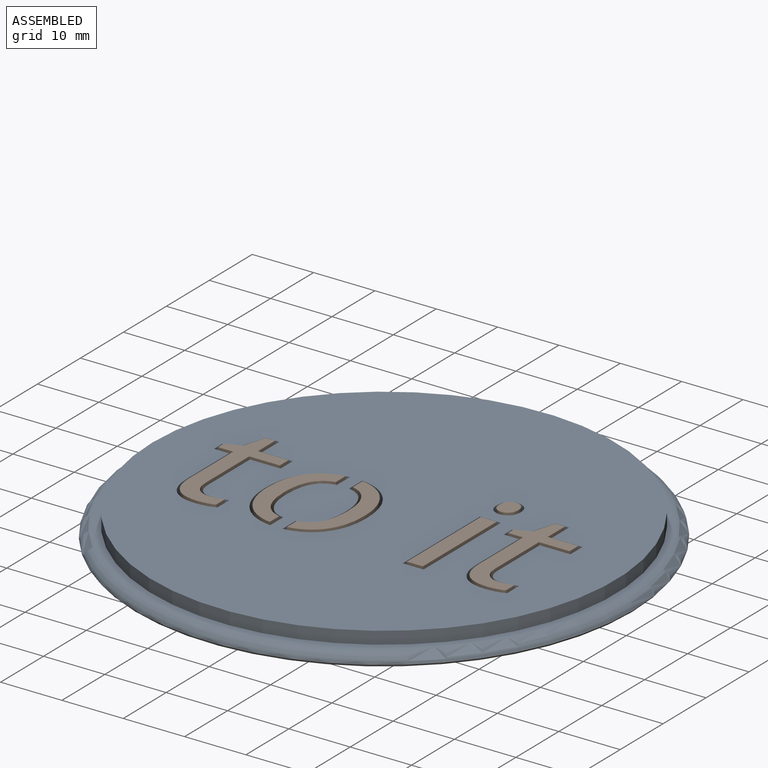
[diagram: assembled view]
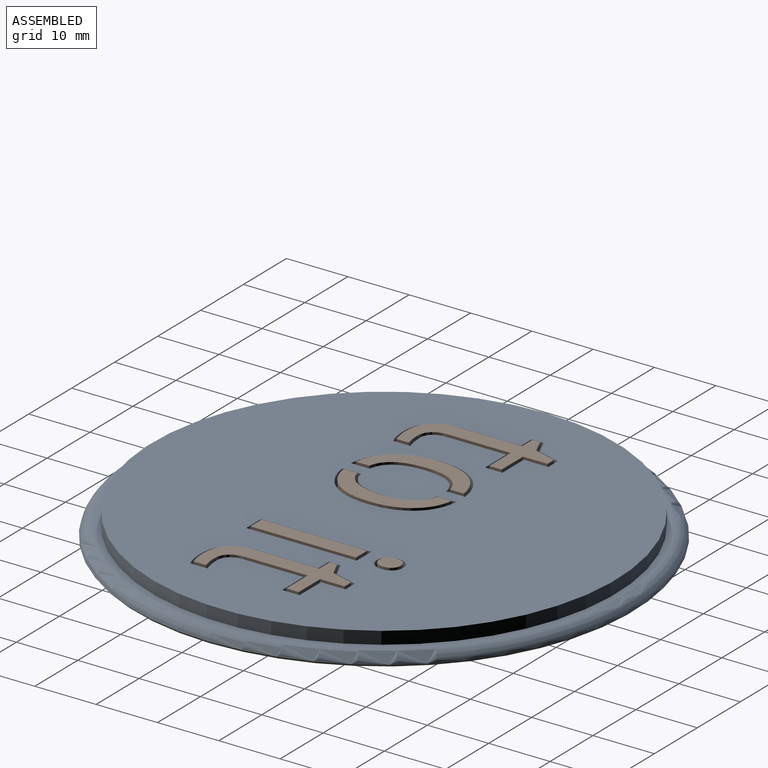
[diagram: assembled view, second angle]
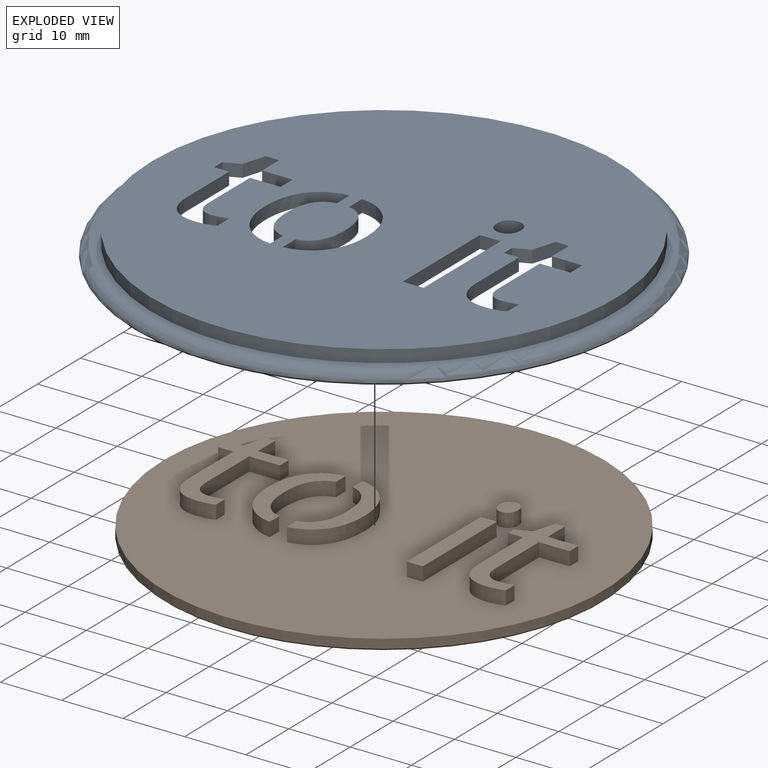
[diagram: exploded view]
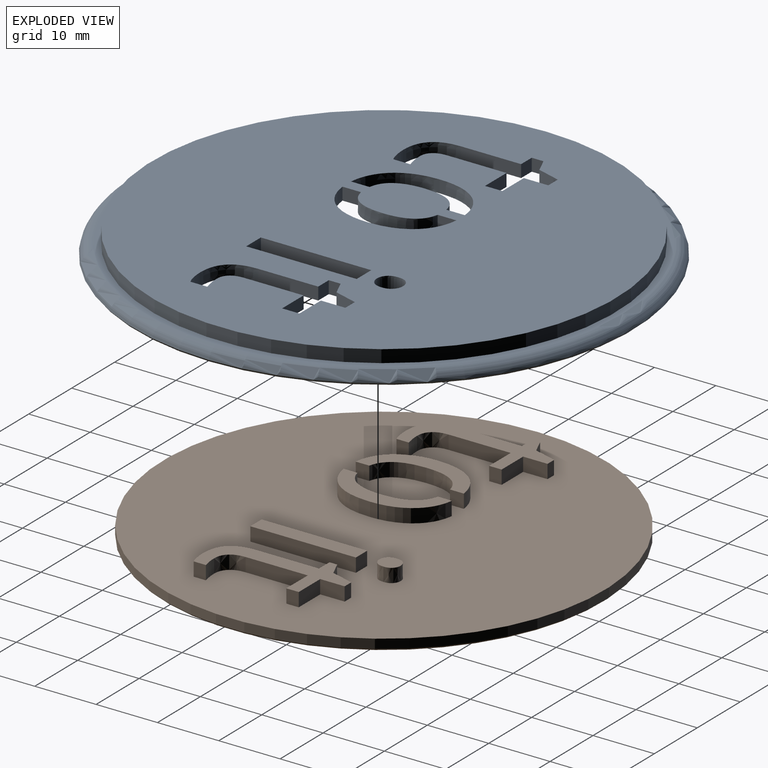
[diagram: exploded view, second angle]
ASSEMBLY  parts=2 mates=2
PART A: 80 faces, bbox 88.3x88.3x4 mm
  f0: plane 75.6x75.6mm, normal (0,0,1), area 4066.4mm2, adj f6,f9,f10,f11,f12,f13,f14,f15
  f1: plane 72.2x72.2mm, normal (0,0,-1), area 3671.7mm2, adj f2,f9,f10,f11,f12,f13,f14,f15
  f2: cylinder r=36.1mm len=72.2mm, axis (0,0,-1), area 374.3mm2, adj f1,f7
  f3: plane 80.95x80.95mm, normal (0,0,-1), area 983.5mm2, adj f7,f8
  f4: torus R=38.85mm, axis (0,0,-1), area 680.2mm2, adj f5,f8
  f5: plane 77.7x77.7mm, normal (0,0,1), area 252.8mm2, adj f4,f6
  f6: cylinder r=37.8mm len=75.6mm, axis (0,0,-1), area 486.9mm2, adj f0,f5
  f7: cone r=36.1mm half-angle=45deg, axis (0,0,-1), area 96.6mm2, adj f2,f3
  f8: cone r=40.47mm half-angle=39.8deg, axis (0,0,1), area 117.7mm2, adj f3,f4
  f9: extruded ~5.12x2.45mm, area 11.9mm2, adj f0,f1,f10,f19
  f10: extruded ~6.82x2.21mm, area 15mm2, adj f0,f1,f9,f11
  f11: extruded ~4.91x2.05mm, area 10.4mm2, adj f0,f1,f10,f12
  f12: extruded ~3.28x2.92mm, area 9.1mm2, adj f0,f1,f11,f13
  f13: extruded ~3.39x2.05mm, area 7.4mm2, adj f0,f1,f12,f14
  f14: plane 3.02x2.05mm, normal (-1,0,0), area 6.2mm2, adj f0,f1,f13,f15
  f15: extruded ~2.58x2.05mm, area 6.3mm2, adj f0,f1,f14,f16
  f16: extruded ~4.78x2.05mm, area 10.3mm2, adj f0,f1,f15,f17
  f17: extruded ~4.76x2.05mm, area 10.2mm2, adj f0,f1,f16,f18
  f18: extruded ~2.6x2.05mm, area 6.3mm2, adj f0,f1,f17,f19
  f19: plane 3.04x2.05mm, normal (-1,0,0), area 6.2mm2, adj f0,f1,f9,f18
  f20: extruded ~5.66x5.39mm, area 18.3mm2, adj f0,f1,f21,f38
  f21: extruded ~2.05x1.55mm, area 3.2mm2, adj f0,f1,f20,f22
  f22: extruded ~2.05x1.58mm, area 3.4mm2, adj f0,f1,f21,f23
  f23: plane 2.78x2.05mm, normal (-1,0,0), area 5.7mm2, adj f0,f1,f22,f24
  f24: extruded ~2.05x1.48mm, area 3.1mm2, adj f0,f1,f23,f25
  f25: extruded ~2.05x1.27mm, area 2.6mm2, adj f0,f1,f24,f26
  f26: extruded ~2.05x1.73mm, area 3.9mm2, adj f0,f1,f25,f27
  f27: extruded ~2.12x2.05mm, area 4.6mm2, adj f0,f1,f26,f28
  f28: plane 9.72x2.05mm, normal (-1,0,0), area 19.9mm2, adj f0,f1,f27,f29
  f29: plane 4.99x2.05mm, normal (0,1,0), area 10.2mm2, adj f0,f1,f28,f30
  f30: plane 2.82x2.05mm, normal (-1,0,0), area 5.8mm2, adj f0,f1,f29,f31
  f31: plane 4.99x2.05mm, normal (0,-1,0), area 10.2mm2, adj f0,f1,f30,f32
  f32: plane 3.99x2.05mm, normal (-1,0,0), area 8.2mm2, adj f0,f1,f31,f33
  f33: plane 2.2x2.05mm, normal (0,-1,0), area 4.5mm2, adj f0,f1,f32,f34
  f34: plane 3.78x2.05mm, normal (0.96,-0.29,0), area 8.1mm2, adj f0,f1,f33,f35
  f35: plane 2.54x2.05mm, normal (0.4,-0.92,0), area 5.7mm2, adj f0,f1,f34,f36
  f36: plane 2.05x1.92mm, normal (1,0,0), area 3.9mm2, adj f0,f1,f35,f37
  f37: plane 2.47x2.05mm, normal (0,1,0), area 5.1mm2, adj f0,f1,f36,f38
  f38: plane 9.84x2.05mm, normal (1,0,0), area 20.2mm2, adj f0,f1,f20,f37
  f39: extruded ~2.05x1.6mm, area 3.6mm2, adj f0,f1,f40,f41
  f40: extruded ~2.05x1.36mm, area 3.1mm2, adj f0,f1,f39,f42
  f41: extruded ~2.05x1.6mm, area 3.6mm2, adj f0,f1,f39,f46
  f42: extruded ~2.05x1.38mm, area 3.1mm2, adj f0,f1,f40,f43
  f43: extruded ~2.05x1.6mm, area 3.6mm2, adj f0,f1,f42,f44
  f44: extruded ~2.05x1.6mm, area 3.6mm2, adj f0,f1,f43,f45
  f45: extruded ~2.05x1.38mm, area 3.1mm2, adj f0,f1,f44,f46
  f46: extruded ~2.05x1.36mm, area 3.1mm2, adj f0,f1,f41,f45
  f47: plane 18x2.05mm, normal (1,0,0), area 36.9mm2, adj f0,f1,f49,f50
  f48: plane 18x2.05mm, normal (-1,0,0), area 36.9mm2, adj f0,f1,f49,f50
  f49: plane 3.41x2.05mm, normal (0,1,0), area 7mm2, adj f0,f1,f47,f48
  f50: plane 3.41x2.05mm, normal (0,-1,0), area 7mm2, adj f0,f1,f47,f48
  f51: plane 3.06x2.05mm, normal (1,0,0), area 6.3mm2, adj f0,f1,f52,f59
  f52: extruded ~2.54x2.05mm, area 6.2mm2, adj f0,f1,f51,f53
  f53: extruded ~4.74x2.05mm, area 10.2mm2, adj f0,f1,f52,f54
  f54: extruded ~4.79x2.05mm, area 10.3mm2, adj f0,f1,f53,f55
  f55: extruded ~2.54x2.05mm, area 6.2mm2, adj f0,f1,f54,f56
  f56: plane 3.02x2.05mm, normal (1,0,0), area 6.2mm2, adj f0,f1,f55,f57
  f57: extruded ~5.06x2.46mm, area 11.8mm2, adj f0,f1,f56,f58
  f58: extruded ~6.84x2.22mm, area 15.1mm2, adj f0,f1,f57,f60
  f59: extruded ~5.05x2.5mm, area 11.9mm2, adj f0,f1,f51,f60
  f60: extruded ~6.76x2.23mm, area 14.9mm2, adj f0,f1,f58,f59
  f61: plane 2.05x1.92mm, normal (1,0,0), area 3.9mm2, adj f0,f1,f62,f63
  f62: plane 2.47x2.05mm, normal (0,1,0), area 5.1mm2, adj f0,f1,f61,f79
  f63: plane 2.54x2.05mm, normal (0.4,-0.92,0), area 5.7mm2, adj f0,f1,f61,f64
  f64: plane 3.78x2.05mm, normal (0.96,-0.29,0), area 8.1mm2, adj f0,f1,f63,f65
  f65: plane 2.2x2.05mm, normal (0,-1,0), area 4.5mm2, adj f0,f1,f64,f66
  f66: plane 3.99x2.05mm, normal (-1,0,0), area 8.2mm2, adj f0,f1,f65,f67
  f67: plane 4.99x2.05mm, normal (0,-1,0), area 10.2mm2, adj f0,f1,f66,f68
  f68: plane 2.82x2.05mm, normal (-1,0,0), area 5.8mm2, adj f0,f1,f67,f69
  f69: plane 4.99x2.05mm, normal (0,1,0), area 10.2mm2, adj f0,f1,f68,f70
  f70: plane 9.72x2.05mm, normal (-1,0,0), area 19.9mm2, adj f0,f1,f69,f71
  f71: extruded ~2.12x2.05mm, area 4.6mm2, adj f0,f1,f70,f72
  f72: extruded ~2.05x1.73mm, area 3.9mm2, adj f0,f1,f71,f73
  f73: extruded ~2.05x1.27mm, area 2.6mm2, adj f0,f1,f72,f74
  f74: extruded ~2.05x1.48mm, area 3.1mm2, adj f0,f1,f73,f75
  f75: plane 2.78x2.05mm, normal (-1,0,0), area 5.7mm2, adj f0,f1,f74,f76
  f76: extruded ~2.05x1.58mm, area 3.4mm2, adj f0,f1,f75,f77
  f77: extruded ~2.05x1.55mm, area 3.2mm2, adj f0,f1,f76,f78
  f78: extruded ~5.66x5.39mm, area 18.3mm2, adj f0,f1,f77,f79
  f79: plane 9.84x2.05mm, normal (1,0,0), area 20.2mm2, adj f0,f1,f62,f78
PART B: 81 faces, bbox 71.8x71.8x4.1 mm
  f0: extruded ~2.52x2.25mm, area 6.8mm2, adj f4,f28,f41,f78
  f1: extruded ~4.42x2.26mm, area 11.4mm2, adj f4,f36,f41,f78
  f2: extruded ~2.79x2.25mm, area 6.7mm2, adj f4,f38,f41,f80
  f3: extruded ~2.5x2.25mm, area 6.8mm2, adj f4,f27,f41,f80
  f4: plane 17.8x6.69mm, normal (0,0,1), area 50.6mm2, adj f0,f1,f2,f3,f27,f28,f36,f37
  f5: plane 71.2x71.2mm, normal (0,0,-1), area 3981.5mm2, adj f76
  f6: cylinder r=35.9mm len=71.8mm, axis (0,0,-1), area 338.3mm2, adj f41,f76
  f7: extruded ~2.25x1.34mm, area 3mm2, adj f8,f25,f26,f41
  f8: extruded ~2.25x2.02mm, area 5.1mm2, adj f7,f9,f26,f41
  f9: extruded ~2.38x2.25mm, area 5.7mm2, adj f8,f10,f26,f41
  f10: plane 10.12x2.25mm, normal (1,0,0), area 22.8mm2, adj f9,f11,f26,f41
  f11: plane 4.99x2.25mm, normal (0,-1,0), area 11.2mm2, adj f10,f12,f26,f41
  f12: plane 2.25x2.02mm, normal (1,0,0), area 4.6mm2, adj f11,f13,f26,f41
  f13: plane 4.99x2.25mm, normal (0,1,0), area 11.2mm2, adj f12,f14,f26,f41
  f14: plane 3.99x2.25mm, normal (1,0,0), area 9mm2, adj f13,f15,f26,f41
  f15: plane 2.25x1.51mm, normal (0,1,0), area 3.4mm2, adj f14,f16,f26,f41
  f16: plane 3.67x2.25mm, normal (-0.96,0.29,0), area 8.6mm2, adj f15,f17,f26,f41
  f17: plane 2.47x2.25mm, normal (-0.4,0.92,0), area 6.1mm2, adj f16,f18,f26,f41
  f18: plane 2.25x1.26mm, normal (-1,0,0), area 2.8mm2, adj f17,f19,f26,f41
  f19: plane 2.47x2.25mm, normal (0,-1,0), area 5.5mm2, adj f18,f20,f26,f41
  f20: plane 10.24x2.25mm, normal (-1,0,0), area 23mm2, adj f19,f21,f26,f41
  f21: extruded ~5.26x4.99mm, area 18.7mm2, adj f20,f22,f26,f41
  f22: extruded ~2.25x1.49mm, area 3.4mm2, adj f21,f23,f26,f41
  f23: extruded ~2.25x1.25mm, area 2.9mm2, adj f22,f24,f26,f41
  f24: plane 2.25x1.99mm, normal (1,0,0), area 4.5mm2, adj f23,f25,f26,f41
  f25: extruded ~2.25x1.02mm, area 2.3mm2, adj f7,f24,f26,f41
  f26: plane 21.51x10.19mm, normal (0,0,1), area 76.6mm2, adj f7,f8,f9,f10,f11,f12,f13,f14
  f27: extruded ~5.02x2.25mm, area 11.9mm2, adj f3,f4,f28,f41
  f28: extruded ~5x2.25mm, area 11.8mm2, adj f0,f4,f27,f41
  f29: extruded ~2.46x2.25mm, area 6.7mm2, adj f30,f40,f41,f77
  f30: extruded ~4.98x2.25mm, area 11.8mm2, adj f29,f31,f40,f41
  f31: extruded ~5.03x2.25mm, area 11.9mm2, adj f30,f32,f40,f41
  f32: extruded ~2.46x2.25mm, area 6.7mm2, adj f31,f40,f41,f79
  f33: extruded ~6.57x2.25mm, area 15.9mm2, adj f34,f39,f40,f41
  f34: extruded ~6.5x2.25mm, area 15.7mm2, adj f33,f35,f40,f41
  f35: extruded ~4.36x2.31mm, area 11.3mm2, adj f34,f40,f41,f77
  f36: extruded ~6.55x2.25mm, area 15.8mm2, adj f1,f4,f37,f41
  f37: extruded ~4.74x2.25mm, area 11mm2, adj f4,f36,f38,f41
  f38: extruded ~3.11x2.76mm, area 9.5mm2, adj f2,f4,f37,f41
  f39: extruded ~4.37x2.26mm, area 11.3mm2, adj f33,f40,f41,f79
  f40: plane 17.83x6.65mm, normal (0,0,1), area 50.6mm2, adj f29,f30,f31,f32,f33,f34,f35,f39
  f41: plane 71.8x71.8mm, normal (0,0,1), area 3741mm2, adj f0,f1,f2,f3,f6,f7,f8,f9
  f42: plane 2.61x2.25mm, normal (0,-1,0), area 5.9mm2, adj f41,f43,f45,f46
  f43: plane 17.2x2.25mm, normal (1,0,0), area 38.7mm2, adj f41,f42,f44,f46
  f44: plane 2.61x2.25mm, normal (0,1,0), area 5.9mm2, adj f41,f43,f45,f46
  f45: plane 17.2x2.25mm, normal (-1,0,0), area 38.7mm2, adj f41,f42,f44,f46
  f46: plane 17.2x2.61mm, normal (0,0,1), area 44.8mm2, adj f42,f43,f44,f45
  f47: extruded ~2.25x1.31mm, area 3.2mm2, adj f41,f48,f54,f55
  f48: extruded ~2.25x1.31mm, area 3.2mm2, adj f41,f47,f49,f55
  f49: extruded ~2.25x1.1mm, area 2.7mm2, adj f41,f48,f50,f55
  f50: extruded ~2.25x1.08mm, area 2.7mm2, adj f41,f49,f51,f55
  f51: extruded ~2.25x1.31mm, area 3.2mm2, adj f41,f50,f52,f55
  f52: extruded ~2.25x1.3mm, area 3.2mm2, adj f41,f51,f53,f55
  f53: extruded ~2.25x1.08mm, area 2.7mm2, adj f41,f52,f54,f55
  f54: extruded ~2.25x1.1mm, area 2.7mm2, adj f41,f47,f53,f55
  f55: plane 3.47x3.08mm, normal (0,0,1), area 8.7mm2, adj f47,f48,f49,f50,f51,f52,f53,f54
  f56: extruded ~2.25x1.34mm, area 3mm2, adj f41,f57,f74,f75
  f57: extruded ~2.25x2.02mm, area 5.1mm2, adj f41,f56,f58,f75
  f58: extruded ~2.38x2.25mm, area 5.7mm2, adj f41,f57,f59,f75
  f59: plane 10.12x2.25mm, normal (1,0,0), area 22.8mm2, adj f41,f58,f60,f75
  f60: plane 4.99x2.25mm, normal (0,-1,0), area 11.2mm2, adj f41,f59,f61,f75
  f61: plane 2.25x2.02mm, normal (1,0,0), area 4.6mm2, adj f41,f60,f62,f75
  f62: plane 4.99x2.25mm, normal (0,1,0), area 11.2mm2, adj f41,f61,f63,f75
  f63: plane 3.99x2.25mm, normal (1,0,0), area 9mm2, adj f41,f62,f64,f75
  f64: plane 2.25x1.51mm, normal (0,1,0), area 3.4mm2, adj f41,f63,f65,f75
  f65: plane 3.67x2.25mm, normal (-0.96,0.29,0), area 8.6mm2, adj f41,f64,f66,f75
  f66: plane 2.47x2.25mm, normal (-0.4,0.92,0), area 6.1mm2, adj f41,f65,f67,f75
  f67: plane 2.25x1.26mm, normal (-1,0,0), area 2.8mm2, adj f41,f66,f68,f75
  f68: plane 2.47x2.25mm, normal (0,-1,0), area 5.5mm2, adj f41,f67,f69,f75
  f69: plane 10.24x2.25mm, normal (-1,0,0), area 23mm2, adj f41,f68,f70,f75
  f70: extruded ~5.26x4.99mm, area 18.7mm2, adj f41,f69,f71,f75
  f71: extruded ~2.25x1.49mm, area 3.4mm2, adj f41,f70,f72,f75
  f72: extruded ~2.25x1.25mm, area 2.9mm2, adj f41,f71,f73,f75
  f73: plane 2.25x1.99mm, normal (1,0,0), area 4.5mm2, adj f41,f72,f74,f75
  f74: extruded ~2.25x1.02mm, area 2.3mm2, adj f41,f56,f73,f75
  f75: plane 21.51x10.19mm, normal (0,0,1), area 76.6mm2, adj f56,f57,f58,f59,f60,f61,f62,f63
  f76: cone r=35.6mm half-angle=45deg, axis (0,0,1), area 95.3mm2, adj f5,f6
  f77: plane 2.28x2.25mm, normal (-1,0,0), area 5.1mm2, adj f29,f35,f40,f41
  f78: plane 2.26x2.25mm, normal (1,0,0), area 5.1mm2, adj f0,f1,f4,f41
  f79: plane 2.25x2.24mm, normal (-1,0,0), area 5mm2, adj f32,f39,f40,f41
  f80: plane 2.25x2.23mm, normal (1,0,0), area 5mm2, adj f2,f3,f4,f41
PLACE A t=(-1.98,3.54,-2.05)mm
PLACE B t=(-1.98,3.54,-1.9)mm
MATE cylindrical B.f6 <-> A.f2  axis (0,0,-1) through (-1.98,3.54,-0.85)mm
MATE planar B.f6 <-> A.f1  axis (0,0,1) through (-1.98,3.54,-0.1)mm
